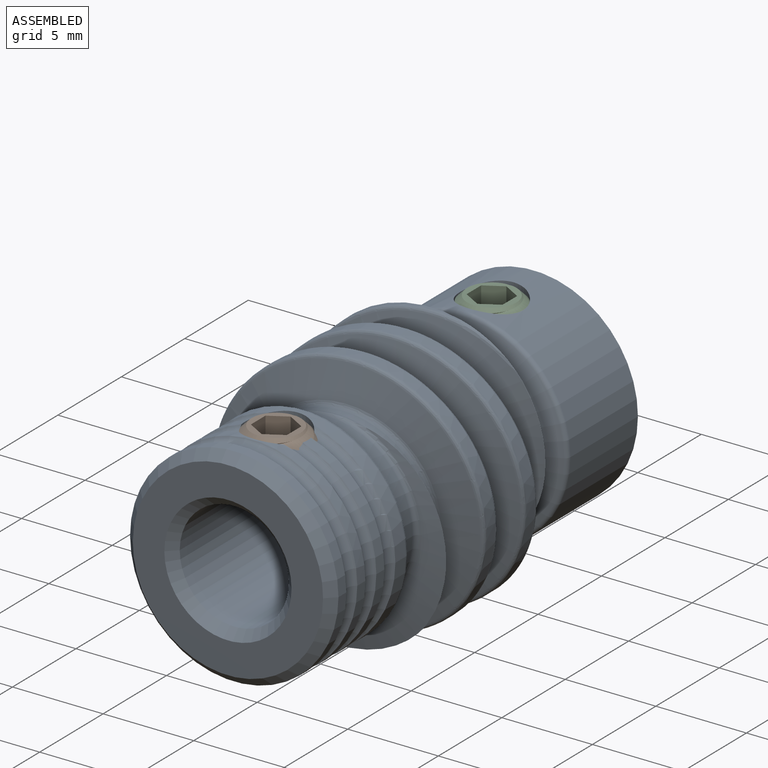
[diagram: assembled view]
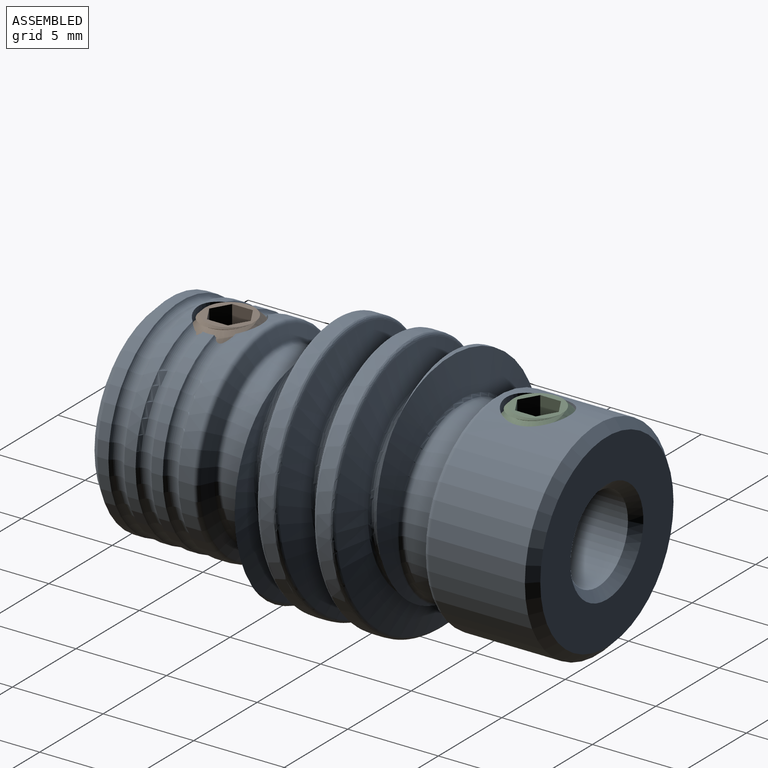
[diagram: assembled view, second angle]
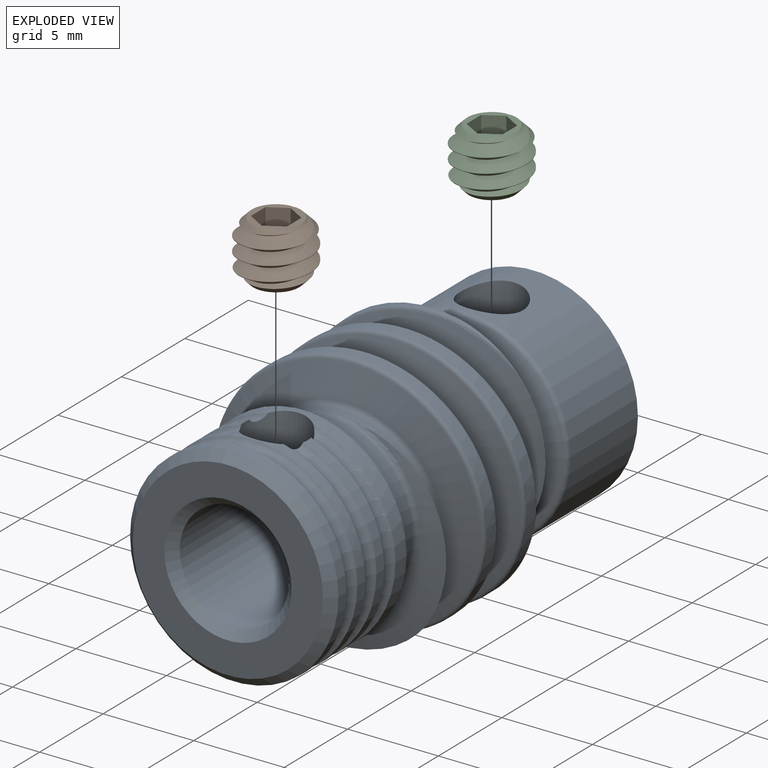
[diagram: exploded view]
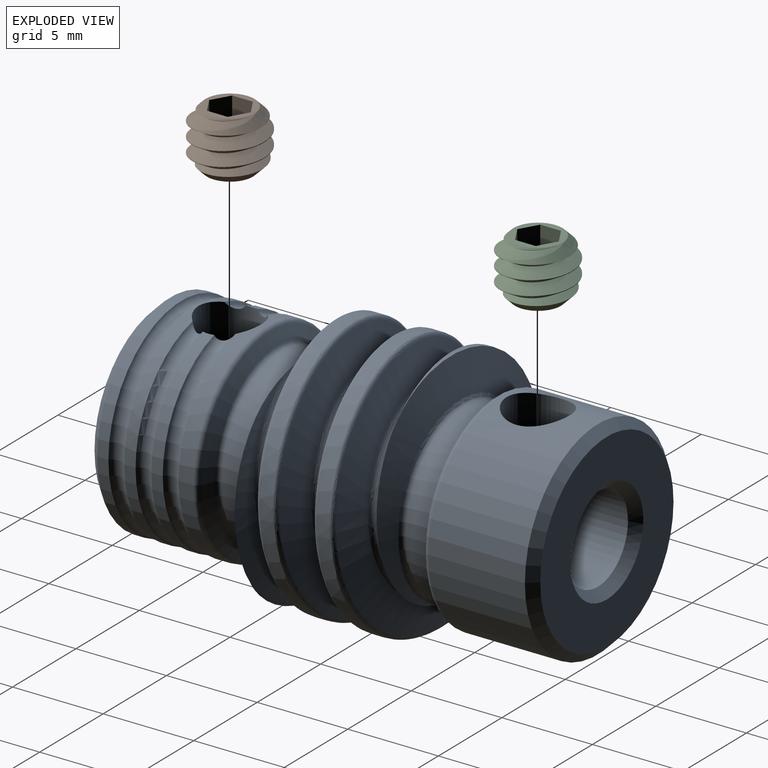
[diagram: exploded view, second angle]
ASSEMBLY  parts=3 mates=2
PART A: 50 faces, bbox 14x24.6x14.7 mm
  f0: torus R=5.05mm, axis (0,-1,0), area 3.1mm2, adj f11,f31,f34,f35
  f1: torus R=5.05mm, axis (0,-1,0), area 5.8mm2, adj f12,f31,f32,f37
  f2: torus R=5.05mm, axis (0,1,0), area 5.1mm2, adj f11,f14,f40
  f3: torus R=5.05mm, axis (0,-1,0), area 5.1mm2, adj f12,f15,f42
  f4: torus R=5.45mm, axis (0,1,0), area 6.1mm2, adj f14,f16,f43
  f5: torus R=5.45mm, axis (0,1,0), area 6.1mm2, adj f15,f17,f44
  f6: torus R=6mm, axis (0,1,0), area 7.6mm2, adj f7,f17,f22,f25
  f7: torus R=6mm, axis (0,1,0), area 18.4mm2, adj f6,f17,f22,f45
  f8: torus R=6mm, axis (0,1,0), area 7.6mm2, adj f9,f22,f25,f27
  f9: torus R=6mm, axis (0,1,0), area 18.4mm2, adj f8,f22,f27,f47
  f10: torus R=6mm, axis (0,1,0), area 18.4mm2, adj f27,f29,f49
  f11: cylinder r=4.75mm len=9.5mm, axis (0,1,0), area 31mm2, adj f0,f2,f31,f35,f36,f40,f41
  f12: cylinder r=4.75mm len=9.5mm, axis (0,1,0), area 31mm2, adj f1,f3,f31,f36,f37,f41,f42
  f13: cylinder r=7mm len=14mm, axis (0,-1,0), area 69mm2, adj f32,f33,f34,f39
  f14: cone r=5.58mm half-angle=65deg, axis (0,1,0), area 23.8mm2, adj f2,f4,f40,f43
  f15: cone r=5.58mm half-angle=65deg, axis (0,-1,0), area 23.8mm2, adj f3,f5,f42,f44
  f16: cylinder r=5.75mm len=11.5mm, axis (0,-1,0), area 182.3mm2, adj f4,f18,f19,f43
  f17: cylinder r=5.75mm len=11.5mm, axis (0,-1,0), area 29.1mm2, adj f5,f6,f7,f25,f44,f45
  f18: cone r=5.75mm half-angle=45deg, axis (0,-1,0), area 24.4mm2, adj f16,f46
  f19: cylinder r=1.73mm len=3.45mm, axis (0,0,-1), area 36.6mm2, adj f16,f20
  f20: cylinder r=2.38mm len=12.59mm, axis (0,1,0), area 177.7mm2, adj f19,f21,f23
  f21: cone r=2.88mm half-angle=45deg, axis (0,1,0), area 11.7mm2, adj f20,f46
  f22: cylinder r=5.75mm len=11.5mm, axis (0,-1,0), area 20.7mm2, adj f6,f7,f8,f9,f25,f45,f47
  f23: cone r=3.01mm half-angle=67.5deg, axis (0,-1,0), area 11.6mm2, adj f20,f24
  f24: cylinder r=3.01mm len=10.75mm, axis (0,1,0), area 193.4mm2, adj f23,f25,f26
  f25: cylinder r=1.73mm len=3.45mm, axis (0,0,-1), area 31.2mm2, adj f6,f8,f17,f22,f24,f27,f45,f47
  f26: cone r=3.51mm half-angle=45deg, axis (0,-1,0), area 14.5mm2, adj f24,f48
  f27: cylinder r=5.75mm len=11.5mm, axis (0,-1,0), area 22.2mm2, adj f8,f9,f10,f25,f47,f49
  f28: cone r=5.75mm half-angle=45deg, axis (0,1,0), area 24.4mm2, adj f29,f48
  f29: cylinder r=5.75mm len=11.5mm, axis (0,-1,0), area 22.3mm2, adj f10,f28,f49
  f30: bspline ~14.74x14.02mm, area 179.2mm2, adj f31,f32,f33,f34
  f31: bspline ~10.3x9.95mm, area 33.5mm2, adj f0,f1,f11,f12,f30,f36
  f32: cone r=7mm half-angle=75.4deg, axis (0,1,0), area 38.2mm2, adj f1,f13,f30,f33,f37,f38,f39
  f33: bspline ~13.88x13.87mm, area 34.2mm2, adj f13,f30,f32,f34
  f34: cone r=7mm half-angle=75.4deg, axis (0,-1,0), area 38.2mm2, adj f0,f13,f30,f33,f35,f38,f39
  f35: torus R=5.05mm, axis (0,-1,0), area 5.8mm2, adj f0,f11,f34,f41
  f36: cylinder r=4.75mm len=10mm, axis (0,-1,0), area 41.1mm2, adj f11,f12,f31,f41
  f37: torus R=5.05mm, axis (0,-1,0), area 3.1mm2, adj f1,f12,f32,f41
  f38: bspline ~14.74x14.02mm, area 179.2mm2, adj f32,f34,f39,f41
  f39: bspline ~13.88x13.87mm, area 34.2mm2, adj f13,f32,f34,f38
  f40: torus R=5.05mm, axis (0,1,0), area 5.1mm2, adj f2,f11,f14
  f41: bspline ~10.3x9.95mm, area 33.5mm2, adj f11,f12,f35,f36,f37,f38
  f42: torus R=5.05mm, axis (0,-1,0), area 5.1mm2, adj f3,f12,f15
  f43: torus R=5.45mm, axis (0,1,0), area 6.1mm2, adj f4,f14,f16
  f44: torus R=5.45mm, axis (0,1,0), area 6.1mm2, adj f5,f15,f17
  f45: torus R=6mm, axis (0,1,0), area 7.6mm2, adj f7,f17,f22,f25
  f46: plane 10.5x10.5mm, normal (0,1,0), area 60.6mm2, adj f18,f21
  f47: torus R=6mm, axis (0,1,0), area 7.6mm2, adj f9,f22,f25,f27
  f48: plane 10.5x10.5mm, normal (0,-1,0), area 47.9mm2, adj f26,f28
  f49: torus R=6mm, axis (0,1,0), area 18.4mm2, adj f10,f27,f29
PART B: 16 faces, bbox 4x4x4.1 mm
  f0: cone r=1.02mm half-angle=60deg, axis (0,0,-1), area 3.7mm2, adj f1
  f1: plane 2.54x2.54mm, normal (0,0,-1), area 1.8mm2, adj f0,f3
  f2: cylinder r=1.99mm len=3.99mm, axis (0,0,-1), area 0.9mm2, adj f4,f5,f6,f7
  f3: cone r=1.99mm half-angle=45deg, axis (0,0,1), area 5mm2, adj f1,f4,f5,f7
  f4: cone r=1.99mm half-angle=45deg, axis (0,0,1), area 0.5mm2, adj f2,f3,f5,f7
  f5: bspline ~4.04x4.04mm, area 24.5mm2, adj f2,f3,f4,f6,f7,f14
  f6: cone r=1.99mm half-angle=45deg, axis (0,0,-1), area 4.4mm2, adj f2,f5,f7,f14
  f7: bspline ~4.04x4.04mm, area 24.5mm2, adj f2,f3,f4,f5,f6,f14
  f8: plane 1.78x0.99mm, normal (-0.5,-0.87,0), area 2mm2, adj f10,f11,f12,f14
  f9: plane 1.78x1.15mm, normal (1,0,0), area 2mm2, adj f10,f12,f13,f14
  f10: plane 1.78x0.99mm, normal (0.5,-0.87,0), area 2mm2, adj f8,f9,f12,f14
  f11: plane 1.78x1.15mm, normal (-1,0,0), area 2mm2, adj f8,f12,f14,f15
  f12: plane 2.29x1.98mm, normal (0,0,1), area 3.4mm2, adj f8,f9,f10,f11,f13,f15
  f13: plane 1.78x0.99mm, normal (0.5,0.87,0), area 2mm2, adj f9,f12,f14,f15
  f14: plane 2.72x2.71mm, normal (0,0,1), area 2.4mm2, adj f5,f6,f7,f8,f9,f10,f11,f13
  f15: plane 1.78x0.99mm, normal (-0.5,0.87,0), area 2mm2, adj f11,f12,f13,f14
PART C: same geometry as B
PLACE A at identity
PLACE B t=(0,-8.5,2.59)mm
PLACE C t=(0,8.5,2.6)mm
MATE fastened C.f3 <-> A.f19  axis (0,0,1) through (0,8.5,5.77)mm
MATE fastened B.f3 <-> A.f25  axis (0,0,1) through (0,-8.5,5.77)mm
